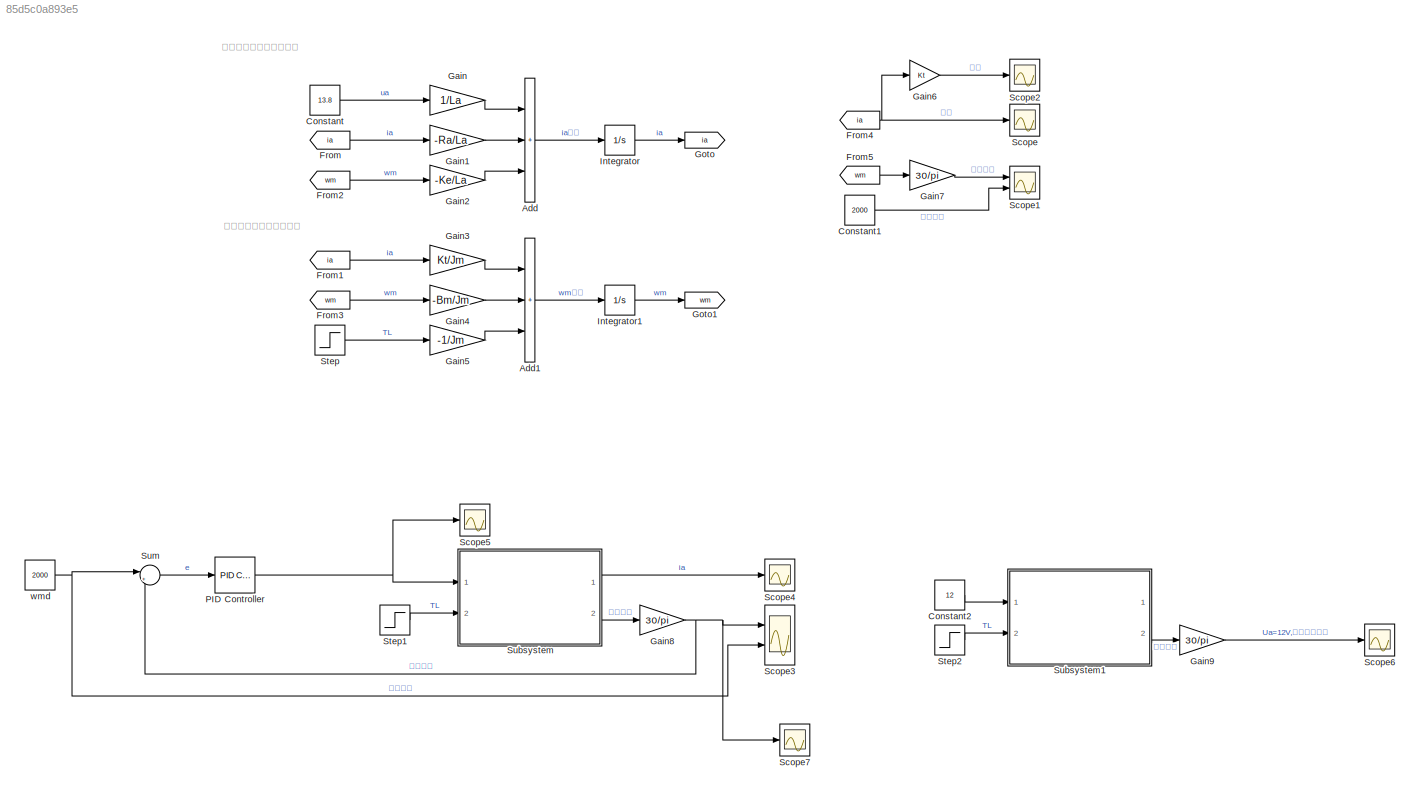
MODEL slx_85d5c0a893e5
KIND model
CONFIG AbsTol = auto
CONFIG EnableMultiTasking = off
CONFIG FixedStep = auto
CONFIG MaxStep = 0.001
CONFIG MinStep = auto
CONFIG RelTol = 1e-3
CONFIG SampleTimeConstraint = Unconstrained
CONFIG SolverName = VariableStepAuto
CONFIG StartTime = 0.0
CONFIG StopTime = 0.6
BLOCK [Sum] Add
  Commented = on
  IconShape = rectangular
  Inputs = +++
  Ports = [3, 1]
BLOCK [Sum] Add1
  Commented = on
  IconShape = rectangular
  Inputs = +++
  Ports = [3, 1]
BLOCK [Constant] Constant
  Commented = on
  Value = 13.8
BLOCK [Constant] Constant1
  Commented = on
  Value = 2000
BLOCK [Constant] Constant2
  SampleTime = 0.01
  Value = 12
BLOCK [From] From
  Commented = on
  GotoTag = ia
BLOCK [From] From1
  Commented = on
  GotoTag = ia
BLOCK [From] From2
  Commented = on
  GotoTag = wm
BLOCK [From] From3
  Commented = on
  GotoTag = wm
BLOCK [From] From4
  Commented = on
  GotoTag = ia
BLOCK [From] From5
  Commented = on
  GotoTag = wm
BLOCK [Gain] Gain
  Commented = on
  Gain = 1/La
BLOCK [Gain] Gain1
  Commented = on
  Gain = -Ra/La
BLOCK [Gain] Gain2
  Commented = on
  Gain = -Ke/La
BLOCK [Gain] Gain3
  Commented = on
  Gain = Kt/Jm
BLOCK [Gain] Gain4
  Commented = on
  Gain = -Bm/Jm
BLOCK [Gain] Gain5
  Commented = on
  Gain = -1/Jm
BLOCK [Gain] Gain6
  Commented = on
  Gain = Kt
BLOCK [Gain] Gain7
  Commented = on
  Gain = 30/pi
BLOCK [Gain] Gain8
  Gain = 30/pi
BLOCK [Gain] Gain9
  Gain = 30/pi
BLOCK [Goto] Goto
  Commented = on
  GotoTag = ia
BLOCK [Goto] Goto1
  Commented = on
  GotoTag = wm
BLOCK [Integrator] Integrator
  Commented = on
  Ports = [1, 1]
BLOCK [Integrator] Integrator1
  Commented = on
  Ports = [1, 1]
BLOCK [Reference] PID Controller  REF=pid_lib/PID Controller
  Ports = [1, 1]
  SourceBlock = pid_lib/PID Controller
  SourceProductBaseCode = SL
  SourceType = PID 1dof
BLOCK [Scope] Scope
  Commented = on
  Floating = off
  NumInputPorts = 1
  Ports = [1]
  ScopeSpecificationString = Simulink.scopes.TimeScopeBlockCfg('CurrentConfiguration', extmgr.ConfigurationSet(extmgr.Configuration('Core','General UI',true),extmgr.Configuration('Core','Source UI',true),extmgr.Configuration('Sources','WiredSimulink',true),extmgr.Configuration('Visuals','Time Domain',true,'SerializedDisplays',{struct('MinYLimReal','-0.24948','MaxYLimReal','2.24534','YLabelReal','','MinYLimMag','0.00000','MaxY...<+1349ch>
BLOCK [Scope] Scope1
  Commented = on
  Floating = off
  NumInputPorts = 2
  Ports = [2]
  ScopeSpecificationString = Simulink.scopes.TimeScopeBlockCfg('CurrentConfiguration', extmgr.ConfigurationSet(extmgr.Configuration('Core','General UI',true,'FigureColor',[1 1 1]),extmgr.Configuration('Core','Source UI',true),extmgr.Configuration('Sources','WiredSimulink',true,'DataLoggingVariableName','ScopeData1'),extmgr.Configuration('Visuals','Time Domain',true,'SerializedDisplays',{struct('MinYLimReal','-329.44562','MaxY...<+1776ch>
BLOCK [Scope] Scope2
  Commented = on
  Floating = off
  NumInputPorts = 1
  Ports = [1]
  ScopeSpecificationString = Simulink.scopes.TimeScopeBlockCfg('CurrentConfiguration', extmgr.ConfigurationSet(extmgr.Configuration('Core','General UI',true),extmgr.Configuration('Core','Source UI',true),extmgr.Configuration('Sources','WiredSimulink',true,'DataLoggingVariableName','ScopeData2'),extmgr.Configuration('Visuals','Time Domain',true,'SerializedDisplays',{struct('MinYLimReal','-0.01647','MaxYLimReal','0.14819','YLab...<+1386ch>
BLOCK [Scope] Scope3
  Floating = off
  NumInputPorts = 2
  Ports = [2]
  ScopeSpecificationString = Simulink.scopes.TimeScopeBlockCfg('CurrentConfiguration', extmgr.ConfigurationSet(extmgr.Configuration('Core','General UI',true),extmgr.Configuration('Core','Source UI',true),extmgr.Configuration('Sources','WiredSimulink',true,'DataLoggingVariableName','dc_pi','DataLogging',true),extmgr.Configuration('Visuals','Time Domain',true,'SerializedDisplays',{struct('MinYLimReal','-312.01382','MaxYLimReal'...<+1842ch>
BLOCK [Scope] Scope4
  Floating = off
  NumInputPorts = 1
  Ports = [1]
  ScopeSpecificationString = Simulink.scopes.TimeScopeBlockCfg('CurrentConfiguration', extmgr.ConfigurationSet(extmgr.Configuration('Core','General UI',true),extmgr.Configuration('Core','Source UI',true),extmgr.Configuration('Sources','WiredSimulink',true,'DataLoggingVariableName','ScopeData2'),extmgr.Configuration('Visuals','Time Domain',true,'SerializedDisplays',{struct('MinYLimReal','-4.06068','MaxYLimReal','36.54609','YLa...<+1399ch>
BLOCK [Scope] Scope5
  Floating = off
  NumInputPorts = 1
  Ports = [1]
  ScopeSpecificationString = Simulink.scopes.TimeScopeBlockCfg('CurrentConfiguration', extmgr.ConfigurationSet(extmgr.Configuration('Core','General UI',true),extmgr.Configuration('Core','Source UI',true),extmgr.Configuration('Sources','WiredSimulink',true,'DataLoggingVariableName','ScopeData3'),extmgr.Configuration('Visuals','Time Domain',true,'SerializedDisplays',{struct('MinYLimReal','12.55105','MaxYLimReal','25.27211','YLa...<+1773ch>
BLOCK [Scope] Scope6
  Floating = off
  NumInputPorts = 1
  Ports = [1]
  ScopeSpecificationString = Simulink.scopes.TimeScopeBlockCfg('CurrentConfiguration', extmgr.ConfigurationSet(extmgr.Configuration('Core','General UI',true),extmgr.Configuration('Core','Source UI',true),extmgr.Configuration('Sources','WiredSimulink',true,'DataLoggingVariableName','dcmoter_wm','DataLogging',true,'DataLoggingSaveFormat','Array'),extmgr.Configuration('Visuals','Time Domain',true,'SerializedDisplays',{struct('Mi...<+1477ch>
BLOCK [Scope] Scope7
  Floating = off
  NumInputPorts = 1
  Ports = [1]
  ScopeSpecificationString = Simulink.scopes.TimeScopeBlockCfg('CurrentConfiguration', extmgr.ConfigurationSet(extmgr.Configuration('Core','General UI',true),extmgr.Configuration('Core','Source UI',true),extmgr.Configuration('Sources','WiredSimulink',true,'DataLoggingVariableName','dcmoter_wm1','DataLogging',true,'DataLoggingSaveFormat','Array'),extmgr.Configuration('Visuals','Time Domain',true,'SerializedDisplays',{struct('M...<+1469ch>
BLOCK [Step] Step
  After = 0.05
  Commented = on
  SampleTime = 0
  Time = 0.5
BLOCK [Step] Step1
  SampleTime = 0
  Time = 0.3
BLOCK [Step] Step2
  After = 0
  SampleTime = 0
  Time = 0.5
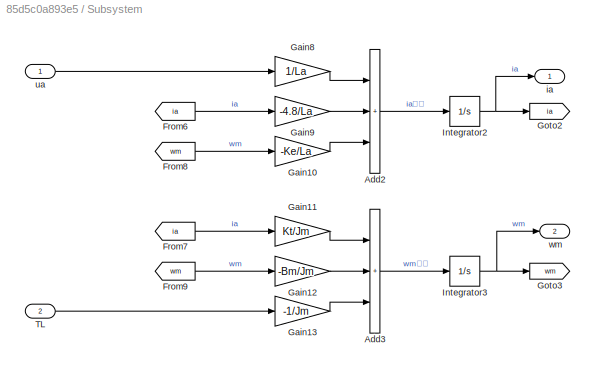
BLOCK [SubSystem] Subsystem
  Ports = [2, 2]
  RequestExecContextInheritance = off
BLOCK [Sum] Subsystem/Add2
  IconShape = rectangular
  Inputs = +++
  Ports = [3, 1]
BLOCK [Sum] Subsystem/Add3
  IconShape = rectangular
  Inputs = +++
  Ports = [3, 1]
BLOCK [From] Subsystem/From6
  GotoTag = ia
BLOCK [From] Subsystem/From7
  GotoTag = ia
BLOCK [From] Subsystem/From8
  GotoTag = wm
BLOCK [From] Subsystem/From9
  GotoTag = wm
BLOCK [Gain] Subsystem/Gain10
  Gain = -Ke/La
BLOCK [Gain] Subsystem/Gain11
  Gain = Kt/Jm
BLOCK [Gain] Subsystem/Gain12
  Gain = -Bm/Jm
BLOCK [Gain] Subsystem/Gain13
  Gain = -1/Jm
BLOCK [Gain] Subsystem/Gain8
  Gain = 1/La
BLOCK [Gain] Subsystem/Gain9
  Gain = -4.8/La
BLOCK [Goto] Subsystem/Goto2
  GotoTag = ia
BLOCK [Goto] Subsystem/Goto3
  GotoTag = wm
BLOCK [Integrator] Subsystem/Integrator2
  Ports = [1, 1]
BLOCK [Integrator] Subsystem/Integrator3
  Ports = [1, 1]
BLOCK [Inport] Subsystem/TL
  Port = 2
BLOCK [Outport] Subsystem/ia
  VectorParamsAs1DForOutWhenUnconnected = off
BLOCK [Inport] Subsystem/ua
BLOCK [Outport] Subsystem/wm
  Port = 2
  VectorParamsAs1DForOutWhenUnconnected = off
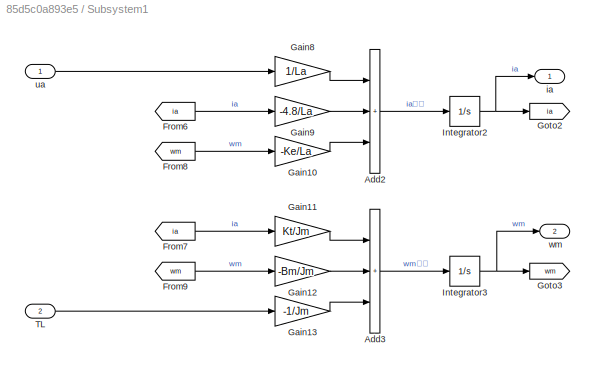
BLOCK [SubSystem] Subsystem1
  Ports = [2, 2]
  RequestExecContextInheritance = off
BLOCK [Sum] Subsystem1/Add2
  IconShape = rectangular
  Inputs = +++
  Ports = [3, 1]
BLOCK [Sum] Subsystem1/Add3
  IconShape = rectangular
  Inputs = +++
  Ports = [3, 1]
BLOCK [From] Subsystem1/From6
  GotoTag = ia
BLOCK [From] Subsystem1/From7
  GotoTag = ia
BLOCK [From] Subsystem1/From8
  GotoTag = wm
BLOCK [From] Subsystem1/From9
  GotoTag = wm
BLOCK [Gain] Subsystem1/Gain10
  Gain = -Ke/La
BLOCK [Gain] Subsystem1/Gain11
  Gain = Kt/Jm
BLOCK [Gain] Subsystem1/Gain12
  Gain = -Bm/Jm
BLOCK [Gain] Subsystem1/Gain13
  Gain = -1/Jm
BLOCK [Gain] Subsystem1/Gain8
  Gain = 1/La
BLOCK [Gain] Subsystem1/Gain9
  Gain = -4.8/La
BLOCK [Goto] Subsystem1/Goto2
  GotoTag = ia
BLOCK [Goto] Subsystem1/Goto3
  GotoTag = wm
BLOCK [Integrator] Subsystem1/Integrator2
  Ports = [1, 1]
BLOCK [Integrator] Subsystem1/Integrator3
  Ports = [1, 1]
BLOCK [Inport] Subsystem1/TL
  Port = 2
BLOCK [Outport] Subsystem1/ia
  VectorParamsAs1DForOutWhenUnconnected = off
BLOCK [Inport] Subsystem1/ua
BLOCK [Outport] Subsystem1/wm
  Port = 2
  VectorParamsAs1DForOutWhenUnconnected = off
BLOCK [Sum] Sum
  Inputs = |+-
  Ports = [2, 1]
BLOCK [Constant] wmd
  Value = 2000
ANNOTATION (root): 直流有刷电动机电枢方程
ANNOTATION (root): 直流有刷电动机运动方程
LINE Add1:1 -> Integrator1:1
LINE Add:1 -> Integrator:1
LINE Constant1:1 -> Scope1:2
LINE Constant2:1 -> Subsystem1:1
LINE Constant:1 -> Gain:1
LINE From1:1 -> Gain3:1
LINE From2:1 -> Gain2:1
LINE From3:1 -> Gain4:1
NET From4:1 -> Gain6:1, Scope:1
LINE From5:1 -> Gain7:1
LINE From:1 -> Gain1:1
LINE Gain1:1 -> Add:2
LINE Gain2:1 -> Add:3
LINE Gain3:1 -> Add1:1
LINE Gain4:1 -> Add1:2
LINE Gain5:1 -> Add1:3
LINE Gain6:1 -> Scope2:1
LINE Gain7:1 -> Scope1:1
NET Gain8:1 -> Scope3:1, Scope7:1, Sum:2
LINE Gain9:1 -> Scope6:1
LINE Gain:1 -> Add:1
LINE Integrator1:1 -> Goto1:1
LINE Integrator:1 -> Goto:1
NET PID Controller:1 -> Scope5:1, Subsystem:1
LINE Step1:1 -> Subsystem:2
LINE Step2:1 -> Subsystem1:2
LINE Step:1 -> Gain5:1
LINE Subsystem/Add2:1 -> Subsystem/Integrator2:1
LINE Subsystem/Add3:1 -> Subsystem/Integrator3:1
LINE Subsystem/From6:1 -> Subsystem/Gain9:1
LINE Subsystem/From7:1 -> Subsystem/Gain11:1
LINE Subsystem/From8:1 -> Subsystem/Gain10:1
LINE Subsystem/From9:1 -> Subsystem/Gain12:1
LINE Subsystem/Gain10:1 -> Subsystem/Add2:3
LINE Subsystem/Gain11:1 -> Subsystem/Add3:1
LINE Subsystem/Gain12:1 -> Subsystem/Add3:2
LINE Subsystem/Gain13:1 -> Subsystem/Add3:3
LINE Subsystem/Gain8:1 -> Subsystem/Add2:1
LINE Subsystem/Gain9:1 -> Subsystem/Add2:2
NET Subsystem/Integrator2:1 -> Subsystem/Goto2:1, Subsystem/ia:1
NET Subsystem/Integrator3:1 -> Subsystem/Goto3:1, Subsystem/wm:1
LINE Subsystem/TL:1 -> Subsystem/Gain13:1
LINE Subsystem/ua:1 -> Subsystem/Gain8:1
LINE Subsystem1/Add2:1 -> Subsystem1/Integrator2:1
LINE Subsystem1/Add3:1 -> Subsystem1/Integrator3:1
LINE Subsystem1/From6:1 -> Subsystem1/Gain9:1
LINE Subsystem1/From7:1 -> Subsystem1/Gain11:1
LINE Subsystem1/From8:1 -> Subsystem1/Gain10:1
LINE Subsystem1/From9:1 -> Subsystem1/Gain12:1
LINE Subsystem1/Gain10:1 -> Subsystem1/Add2:3
LINE Subsystem1/Gain11:1 -> Subsystem1/Add3:1
LINE Subsystem1/Gain12:1 -> Subsystem1/Add3:2
LINE Subsystem1/Gain13:1 -> Subsystem1/Add3:3
LINE Subsystem1/Gain8:1 -> Subsystem1/Add2:1
LINE Subsystem1/Gain9:1 -> Subsystem1/Add2:2
NET Subsystem1/Integrator2:1 -> Subsystem1/Goto2:1, Subsystem1/ia:1
NET Subsystem1/Integrator3:1 -> Subsystem1/Goto3:1, Subsystem1/wm:1
LINE Subsystem1/TL:1 -> Subsystem1/Gain13:1
LINE Subsystem1/ua:1 -> Subsystem1/Gain8:1
LINE Subsystem1:2 -> Gain9:1
LINE Subsystem:1 -> Scope4:1
LINE Subsystem:2 -> Gain8:1
LINE Sum:1 -> PID Controller:1
NET wmd:1 -> Scope3:2, Sum:1
note: NET lines group one-source signal fan-out (src -> all destinations, sorted); 1:1 wires keep LINE
